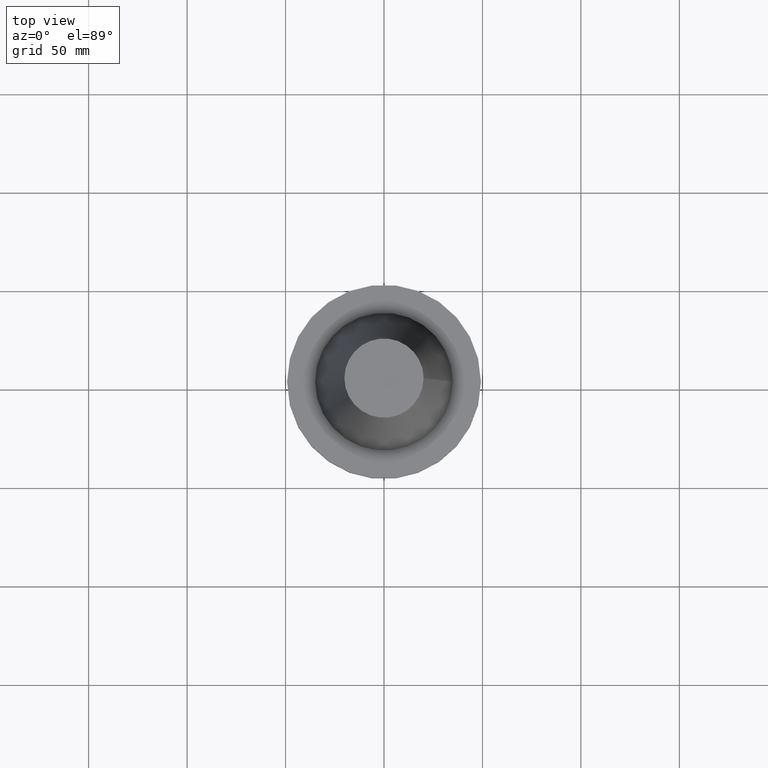
[diagram: clean part render]
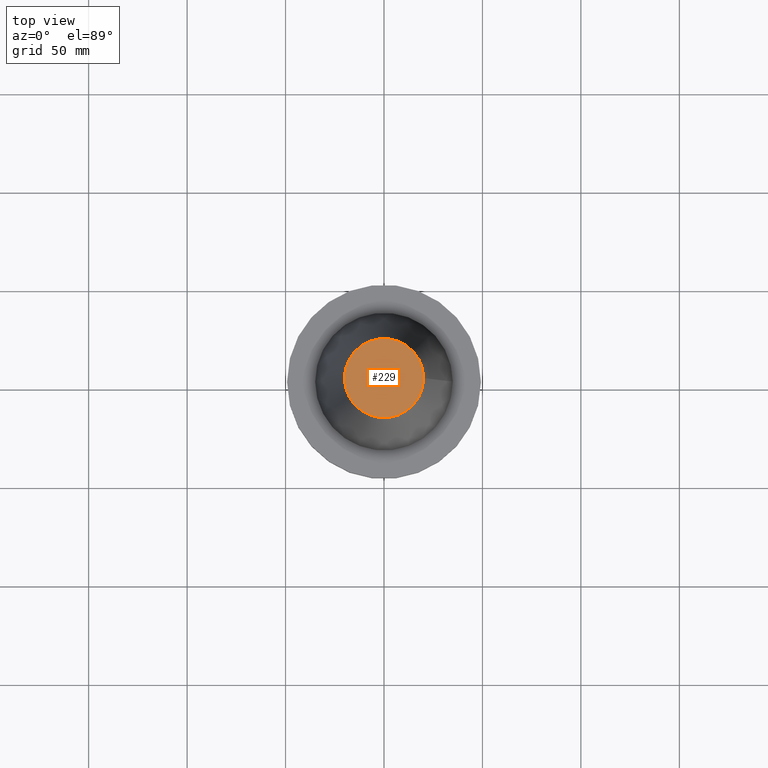
[diagram: same view with one face highlighted and labeled with its STEP entity id]
A machine part, top view. The second image highlights one B-rep face of the part: STEP entity #229.
In plain terms, the highlighted planar face has unit normal (0, 0, -1).
Its self-contained STEP definition (entity closure, byte-faithful):
#13 = PLANE ( 'NONE',  #344 ) ;
#33 = DIRECTION ( 'NONE',  ( 1.000000000000000000, 0.000000000000000000, 0.000000000000000000 ) ) ;
#46 = CIRCLE ( 'NONE', #204, 20.10819343178871321 ) ;
#96 = CARTESIAN_POINT ( 'NONE',  ( 0.000000000000000000, 20.10819343178871321, 101.5999999999999943 ) ) ;
#136 = EDGE_CURVE ( 'NONE', #293, #293, #46, .T. ) ;
#164 = FACE_OUTER_BOUND ( 'NONE', #361, .T. ) ;
#204 = AXIS2_PLACEMENT_3D ( 'NONE', #240, #271, #33 ) ;
#229 = ADVANCED_FACE ( 'NONE', ( #164 ), #13, .F. ) ;
#240 = CARTESIAN_POINT ( 'NONE',  ( 0.000000000000000000, 0.000000000000000000, 101.5999999999999801 ) ) ;
#265 = ORIENTED_EDGE ( 'NONE', *, *, #136, .T. ) ;
#271 = DIRECTION ( 'NONE',  ( -0.000000000000000000, -0.000000000000000000, 1.000000000000000000 ) ) ;
#281 = DIRECTION ( 'NONE',  ( -1.000000000000000000, 0.000000000000000000, -0.000000000000000000 ) ) ;
#286 = DIRECTION ( 'NONE',  ( 0.000000000000000000, 0.000000000000000000, -1.000000000000000000 ) ) ;
#293 = VERTEX_POINT ( 'NONE', #393 ) ;
#344 = AXIS2_PLACEMENT_3D ( 'NONE', #96, #286, #281 ) ;
#361 = EDGE_LOOP ( 'NONE', ( #265 ) ) ;
#393 = CARTESIAN_POINT ( 'NONE',  ( 20.10819343178871321, 0.000000000000000000, 101.5999999999999801 ) ) ;